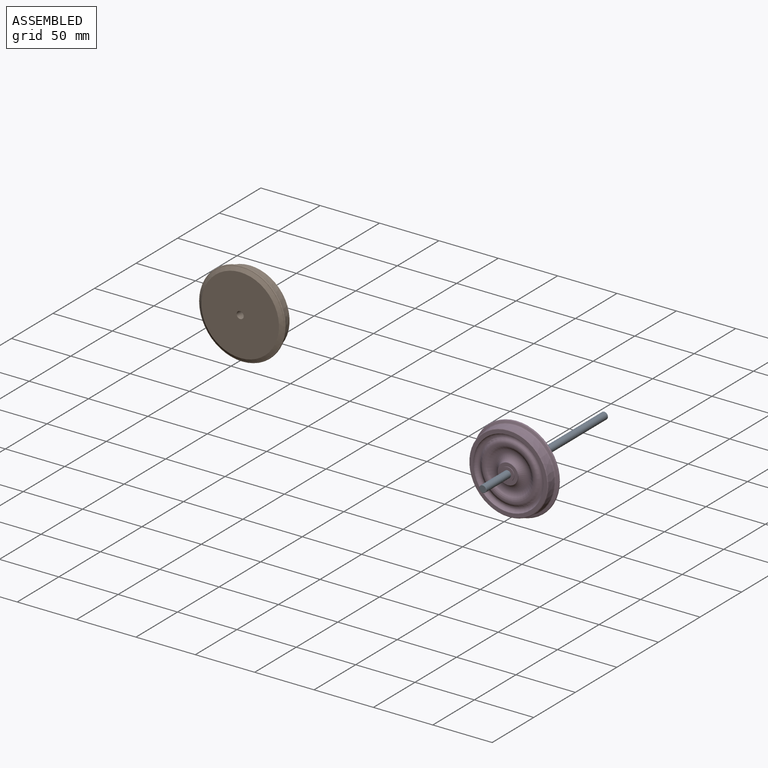
[diagram: assembled view]
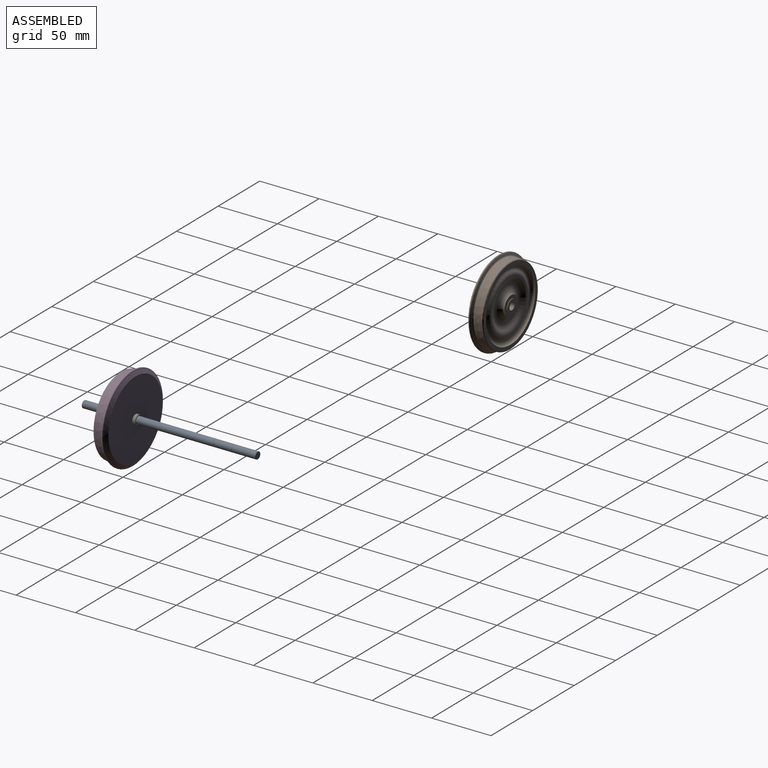
[diagram: assembled view, second angle]
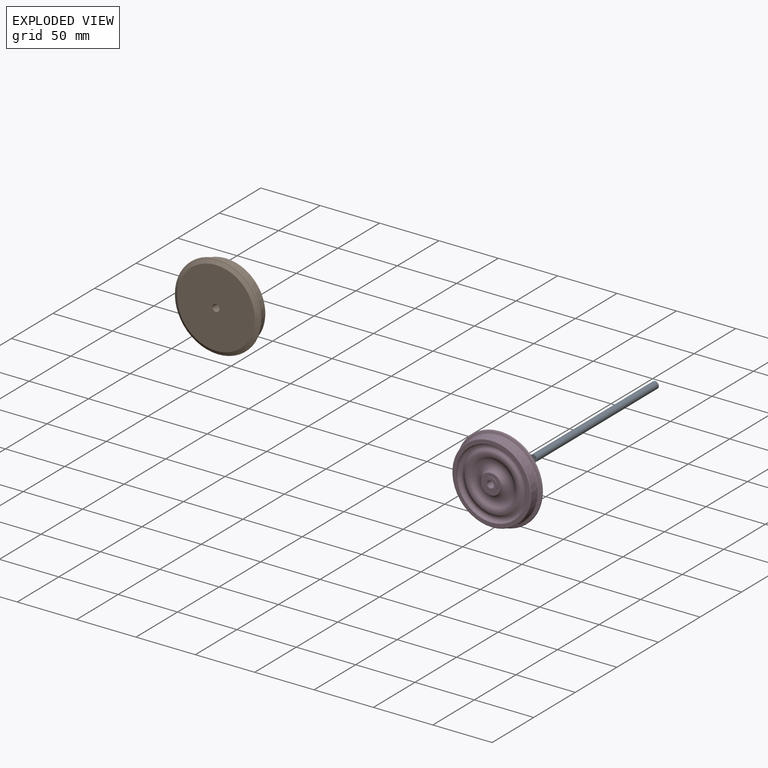
[diagram: exploded view]
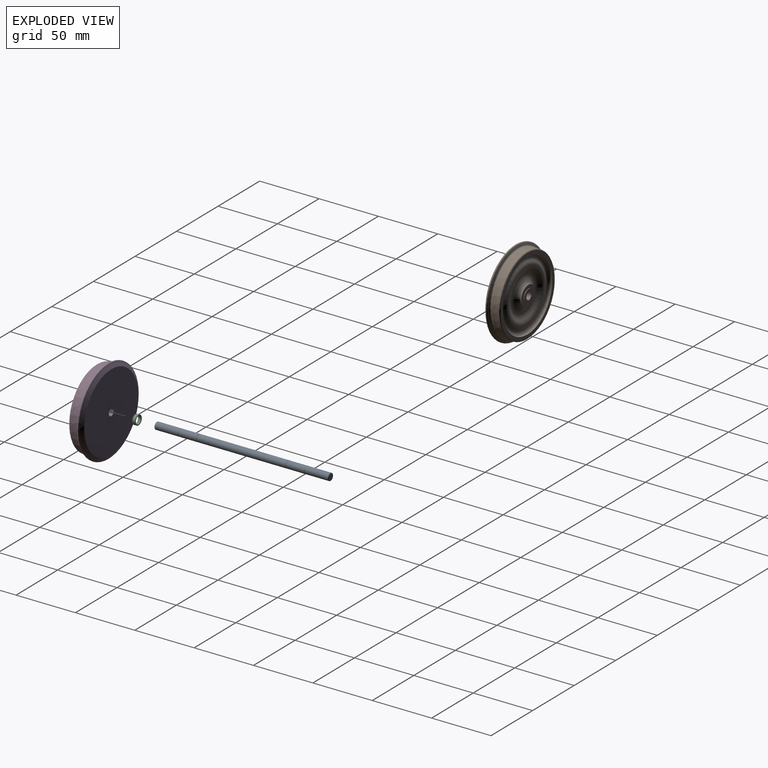
[diagram: exploded view, second angle]
ASSEMBLY  parts=4 mates=2
PART A: 13 faces, bbox 6.6x146.5x6.6 mm
  f0: cylinder r=3mm len=19.7mm, axis (0,1,0), area 371.3mm2, adj f2,f12
  f1: plane 5.6x5.6mm, normal (0,-1,0), area 24.6mm2, adj f12
  f2: torus R=3mm, axis (0,-1,0), area 5.8mm2, adj f0,f3
  f3: cylinder r=3mm len=15.49mm, axis (0,1,0), area 292mm2, adj f2,f4
  f4: torus R=3mm, axis (0,-1,0), area 5.8mm2, adj f3,f5
  f5: cylinder r=3mm len=74.87mm, axis (0,1,0), area 1411.3mm2, adj f4,f6
  f6: torus R=3mm, axis (0,-1,0), area 5.8mm2, adj f5,f7
  f7: cylinder r=3mm len=15.49mm, axis (0,-1,0), area 292mm2, adj f6,f8
  f8: torus R=3mm, axis (0,-1,0), area 5.8mm2, adj f7,f9
  f9: cylinder r=3mm len=19.7mm, axis (0,-1,0), area 371.3mm2, adj f8,f11
  f10: plane 5.6x5.6mm, normal (0,1,0), area 24.6mm2, adj f11
  f11: cone r=3mm half-angle=45deg, axis (0,-1,0), area 5.2mm2, adj f9,f10
  f12: cone r=2.8mm half-angle=45deg, axis (0,1,0), area 5.2mm2, adj f0,f1
PART B: 18 faces, bbox 78.8x15.2x78.8 mm
  f0: cylinder r=8.51mm len=17.01mm, axis (0,-1,0), area 40.1mm2, adj f5,f16
  f1: plane 11x11mm, normal (0,1,0), area 66.8mm2, adj f9,f15
  f2: plane 65.39x65.39mm, normal (0,1,0), area 620.6mm2, adj f3,f14
  f3: torus R=26.65mm, axis (0,1,0), area 1163.7mm2, adj f2,f7
  f4: plane 65.36x65.36mm, normal (0,-1,0), area 3327.3mm2, adj f9,f17
  f5: torus R=14.25mm, axis (0,1,0), area 960.3mm2, adj f0,f8
  f6: plane 44.12x44.12mm, normal (0,1,0), area 59mm2, adj f7,f8
  f7: torus R=22.06mm, axis (0,-1,0), area 421.2mm2, adj f3,f6
  f8: torus R=21.63mm, axis (0,1,0), area 441.5mm2, adj f5,f6
  f9: cylinder r=3mm len=13.65mm, axis (0,-1,0), area 257.2mm2, adj f1,f4
  f10: cone r=33.22mm half-angle=3deg, axis (0,-1,0), area 1441.8mm2, adj f11,f14
  f11: torus R=34.58mm, axis (0,-1,0), area 248.5mm2, adj f10,f12
  f12: cone r=35.82mm half-angle=70deg, axis (0,-1,0), area 370.7mm2, adj f11,f13
  f13: torus R=35.53mm, axis (0,-1,0), area 538.7mm2, adj f12,f17
  f14: cone r=32.7mm half-angle=45deg, axis (0,-1,0), area 154.5mm2, adj f2,f10
  f15: cylinder r=5.5mm len=11mm, axis (0,1,0), area 17.3mm2, adj f1,f16
  f16: plane 17.01x17.01mm, normal (0,1,0), area 132.2mm2, adj f0,f15
  f17: cone r=35.53mm half-angle=55deg, axis (0,1,0), area 745.4mm2, adj f4,f13
PART C: 4 faces, bbox 8x8x2.5 mm
  f0: cylinder r=3.2mm len=6.4mm, axis (0,0,-1), area 50.7mm2, adj f1,f2
  f1: plane 8x8mm, normal (0,0,1), area 18.1mm2, adj f0,f3
  f2: plane 8x8mm, normal (0,0,-1), area 18.1mm2, adj f0,f3
  f3: cylinder r=4mm len=8mm, axis (0,0,-1), area 63.3mm2, adj f1,f2
PART D: same geometry as B
PLACE A t=(0.31,-24.29,14.14)mm
PLACE B t=(-49.69,51.65,-0.34)mm
PLACE C rot(axis=(1,0,0),90deg) t=(-35.3,39.15,-61.32)mm
PLACE D rot(axis=(1,0,0),180deg) t=(250.31,-66.66,-0.34)mm
MATE fastened C.f0 <-> A.f0  axis (0,1,0) through (0.31,-24.29,-0.34)mm
MATE fastened D.f17 <-> C.f0  axis (0,1,0) through (0.31,-54.16,-0.34)mm
